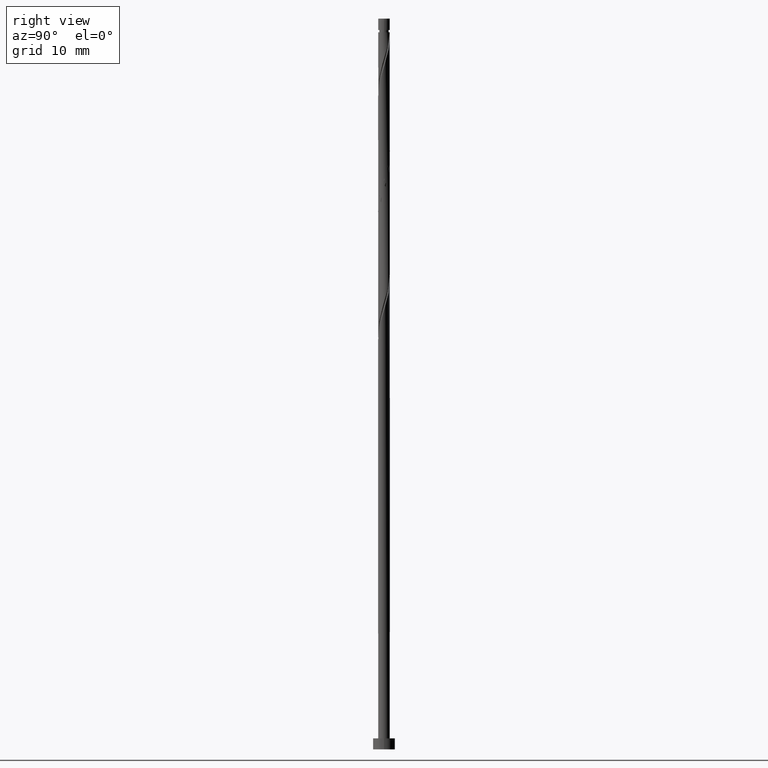
[diagram: clean part render]
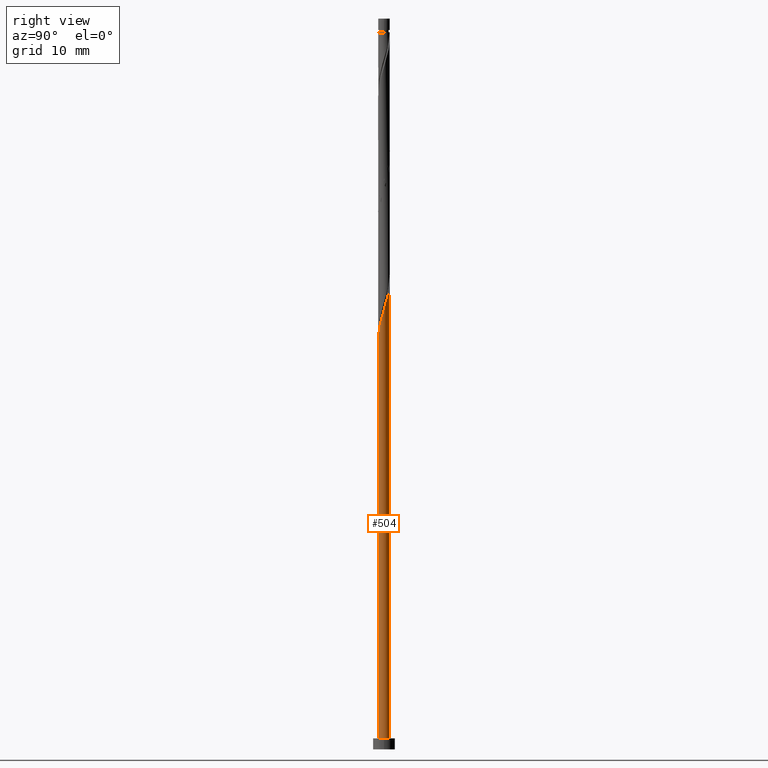
[diagram: same view with one face highlighted and labeled with its STEP entity id]
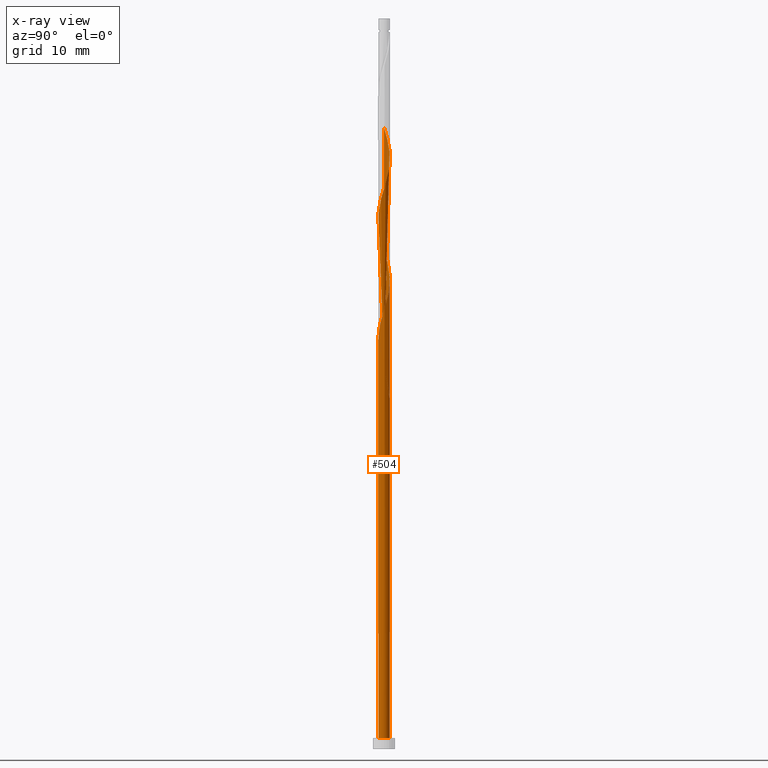
[diagram: x-ray of the same camera — body ghosted, the highlighted face saturated]
A machine part, right view. The second image highlights one B-rep face of the part: STEP entity #504.
The next image is the same camera in x-ray: the body ghosted, the highlighted face saturated — about 0% of this face is hidden behind the body in this view.
In plain terms, the highlighted cylindrical surface (bore or boss wall) has radius 0.8 mm, axis along (-0, -0, -1).
Its self-contained STEP definition (entity closure, byte-faithful):
#1 = CARTESIAN_POINT ( 'NONE',  ( 0.7137528483847243033, -0.3878856043515707674, 75.44453766478820000 ) ) ;
#6 = CARTESIAN_POINT ( 'NONE',  ( -0.7137528483847245253, 0.3878856043515706009, 83.77787099812151439 ) ) ;
#12 = CARTESIAN_POINT ( 'NONE',  ( -0.8000000000000013767, -7.525504397997678647E-16, 52.82724440496210860 ) ) ;
#13 = EDGE_CURVE ( 'NONE', #1334, #481, #1330, .T. ) ;
#43 = CARTESIAN_POINT ( 'NONE',  ( 0.5380435946977609740, -0.6086110916219013012, 57.85194507219559057 ) ) ;
#48 = DIRECTION ( 'NONE',  ( 1.000000000000000000, 0.000000000000000000, 0.000000000000000000 ) ) ;
#55 = DIRECTION ( 'NONE',  ( 0.000000000000000000, 0.000000000000000000, 1.000000000000000000 ) ) ;
#67 = CARTESIAN_POINT ( 'NONE',  ( -0.6258982215412428607, 0.4982483479867358400, 66.64824136849186687 ) ) ;
#74 = CARTESIAN_POINT ( 'NONE',  ( -0.02095763706162228138, 0.8120709009004596357, 64.33342655367705731 ) ) ;
#82 = DIRECTION ( 'NONE',  ( -0.000000000000000000, -0.000000000000000000, -1.000000000000000000 ) ) ;
#88 = CARTESIAN_POINT ( 'NONE',  ( -0.5380435946977610850, 0.6086110916219010791, 82.85194507219556215 ) ) ;
#89 =( BOUNDED_CURVE ( )  B_SPLINE_CURVE ( 2, ( #307, #1139, #325, #611, #618, #213, #942, #503, #1256 ),
 .UNSPECIFIED., .F., .T. ) 
 B_SPLINE_CURVE_WITH_KNOTS ( ( 3, 2, 2, 2, 3 ),
 ( 0.000000000000000000, 0.01388888888888883955, 0.02777777777777779011, 0.04166666666666662966, 0.05452480538552903488 ),
 .UNSPECIFIED. ) 
 CURVE ( )  GEOMETRIC_REPRESENTATION_ITEM ( )  RATIONAL_B_SPLINE_CURVE ( ( 0.9090909090909159440, 0.8952797754656505180, 0.9090909090909159440, 0.8952797754656505180, 0.9090909090909159440, 0.8952797754656505180, 0.9090909090909159440, 0.8963047551055907114, 0.9071930855141281391 ) ) 
 REPRESENTATION_ITEM ( '' )  );
#94 = CARTESIAN_POINT ( 'NONE',  ( -0.1185466159795211943, -0.7911679340315848075, 72.20379692404743821 ) ) ;
#108 = EDGE_CURVE ( 'NONE', #486, #1288, #864, .T. ) ;
#110 = CARTESIAN_POINT ( 'NONE',  ( -0.2974383428124959261, 0.7559290990995433113, 81.92601914626966675 ) ) ;
#115 = CARTESIAN_POINT ( 'NONE',  ( 0.1591979899370590257, -0.7840000000000012514, 73.12972284997334782 ) ) ;
#139 = CARTESIAN_POINT ( 'NONE',  ( -0.8000000000000015987, 8.477863515362155813E-16, 51.76553462831792274 ) ) ;
#148 = CARTESIAN_POINT ( 'NONE',  ( 0.5059346318738409121, 0.6355537104849376950, 62.48157470182522388 ) ) ;
#154 = CARTESIAN_POINT ( 'NONE',  ( 0.6927952113231024001, 0.4241852965488885907, 61.55564877589928585 ) ) ;
#158 = EDGE_CURVE ( 'NONE', #688, #631, #946, .T. ) ;
#189 = CARTESIAN_POINT ( 'NONE',  ( -0.4177409687551283946, 0.6822700953607219176, 65.72231544256597147 ) ) ;
#197 =( BOUNDED_CURVE ( )  B_SPLINE_CURVE ( 2, ( #139, #709, #359, #564, #716, #574, #1206, #783, #1018, #931, #1127, #1198, #1236, #604, #253, #43, #292, #1085, #789, #1091, #1133, #684, #986, #154, #676, #148, #1024, #466, #891, #74, #497, #1311, #189, #597, #67, #774, #612, #490, #1032, #918, #1336, #1243, #215, #937, #299, #1044, #94, #1356, #115, #638, #410, #308, #518, #1, #422, #1049, #844, #1346, #539, #1164, #943, #1057, #320, #1038, #735, #511, #722, #110, #533, #88, #957, #6, #327, #427, #222 ),
 .UNSPECIFIED., .F., .T. ) 
 B_SPLINE_CURVE_WITH_KNOTS ( ( 3, 2, 2, 2, 2, 2, 2, 2, 2, 2, 2, 2, 2, 2, 2, 2, 2, 2, 2, 2, 2, 2, 2, 2, 2, 2, 2, 2, 2, 2, 2, 2, 2, 2, 2, 2, 2, 3 ),
 ( 0.05452480538552903488, 0.05555555555555558023, 0.06944444444444441977, 0.08333333333333337034, 0.09722222222222220989, 0.1111111111111111605, 0.1250000000000000000, 0.1388888888888888395, 0.1527777777777777901, 0.1666666666666666297, 0.1805555555555555802, 0.1944444444444444198, 0.2083333333333333703, 0.2222222222222222099, 0.2361111111111111605, 0.2500000000000000000, 0.2638888888888888395, 0.2777777777777777901, 0.2916666666666666297, 0.3055555555555555802, 0.3194444444444444198, 0.3333333333333333703, 0.3472222222222222099, 0.3611111111111111605, 0.3750000000000000000, 0.3888888888888888395, 0.4027777777777777901, 0.4166666666666666297, 0.4305555555555555802, 0.4444444444444444198, 0.4583333333333333703, 0.4722222222222222099, 0.4861111111111111605, 0.5000000000000000000, 0.5138888888888888395, 0.5277777777777777901, 0.5416666666666667407, 0.5545248053855288406 ),
 .UNSPECIFIED. ) 
 CURVE ( )  GEOMETRIC_REPRESENTATION_ITEM ( )  RATIONAL_B_SPLINE_CURVE ( ( 0.9071930855141281391, 0.9080659294509758617, 0.9090909090909159440, 0.8952797754656505180, 0.9090909090909159440, 0.8952797754656505180, 0.9090909090909159440, 0.8952797754656505180, 0.9090909090909159440, 0.8952797754656505180, 0.9090909090909159440, 0.8952797754656505180, 0.9090909090909159440, 0.8952797754656505180, 0.9090909090909159440, 0.8952797754656505180, 0.9090909090909159440, 0.8952797754656505180, 0.9090909090909159440, 0.8952797754656505180, 0.9090909090909159440, 0.8952797754656505180, 0.9090909090909159440, 0.8952797754656505180, 0.9090909090909159440, 0.8952797754656505180, 0.9090909090909159440, 0.8952797754656505180, 0.9090909090909159440, 0.8952797754656505180, 0.9090909090909159440, 0.8952797754656505180, 0.9090909090909159440, 0.8952797754656505180, 0.9090909090909159440, 0.8952797754656505180, 0.9090909090909159440, 0.8952797754656505180, 0.9090909090909159440, 0.8952797754656505180, 0.9090909090909159440, 0.8952797754656505180, 0.9090909090909159440, 0.8952797754656505180, 0.9090909090909159440, 0.8952797754656505180, 0.9090909090909159440, 0.8952797754656505180, 0.9090909090909159440, 0.8952797754656505180, 0.9090909090909159440, 0.8952797754656505180, 0.9090909090909159440, 0.8952797754656505180, 0.9090909090909159440, 0.8952797754656505180, 0.9090909090909159440, 0.8952797754656505180, 0.9090909090909159440, 0.8952797754656505180, 0.9090909090909159440, 0.8952797754656505180, 0.9090909090909159440, 0.8952797754656505180, 0.9090909090909159440, 0.8952797754656505180, 0.9090909090909159440, 0.8952797754656505180, 0.9090909090909159440, 0.8952797754656505180, 0.9090909090909159440, 0.8952797754656505180, 0.9090909090909159440, 0.8963047551055908224, 0.9071930855141278061 ) ) 
 REPRESENTATION_ITEM ( '' )  );
#213 = CARTESIAN_POINT ( 'NONE',  ( -0.7137528483847245253, 0.3878856043515706009, 50.44453766478817869 ) ) ;
#215 = CARTESIAN_POINT ( 'NONE',  ( -0.5993649215984715450, -0.5298695035169131984, 70.35194507219556215 ) ) ;
#218 = LINE ( 'NONE', #389, #512 ) ;
#220 = CARTESIAN_POINT ( 'NONE',  ( -0.3819927504472525603, 0.7029093388238237816, 49.98157470182521678 ) ) ;
#222 = CARTESIAN_POINT ( 'NONE',  ( -0.8000000000000014877, -1.792675985627239927E-16, 85.09886796165127976 ) ) ;
#234 = CARTESIAN_POINT ( 'NONE',  ( -0.8000000000000013767, -7.525504397997677661E-16, 52.82724440496210150 ) ) ;
#253 = CARTESIAN_POINT ( 'NONE',  ( 0.4177409687551283946, -0.6822700953607219176, 57.38898210923260024 ) ) ;
#286 = CYLINDRICAL_SURFACE ( 'NONE', #613, 0.8000000000000000444 ) ;
#292 = CARTESIAN_POINT ( 'NONE',  ( 0.6258982215412428607, -0.4982483479867358400, 58.31490803515854537 ) ) ;
#297 = ORIENTED_EDGE ( 'NONE', *, *, #520, .F. ) ;
#299 = CARTESIAN_POINT ( 'NONE',  ( -0.3819927504472527824, -0.7029093388238236706, 71.27787099812150018 ) ) ;
#307 = CARTESIAN_POINT ( 'NONE',  ( -0.1591979899370589147, 0.7840000000000012514, 48.12972284997335493 ) ) ;
#308 = CARTESIAN_POINT ( 'NONE',  ( 0.5380435946977609740, -0.6086110916219013012, 74.51861173886223355 ) ) ;
#315 = VECTOR ( 'NONE', #842, 1000.000000000000000 ) ;
#320 = CARTESIAN_POINT ( 'NONE',  ( 0.3819927504472529489, 0.7029093388238235596, 79.61120433145484299 ) ) ;
#324 = ORIENTED_EDGE ( 'NONE', *, *, #421, .F. ) ;
#325 = CARTESIAN_POINT ( 'NONE',  ( -0.4177409687551283946, 0.6822700953607219176, 49.05564877589928585 ) ) ;
#327 = CARTESIAN_POINT ( 'NONE',  ( -0.7585629115355304597, 0.2541304964830881641, 84.24083396108446209 ) ) ;
#346 = CARTESIAN_POINT ( 'NONE',  ( 0.02095763706162231607, 0.8120709009004595247, 48.59268581293631684 ) ) ;
#351 = FACE_OUTER_BOUND ( 'NONE', #1246, .T. ) ;
#359 = CARTESIAN_POINT ( 'NONE',  ( -0.7997337192023812324, -0.02063924346310158642, 51.83342655367705021 ) ) ;
#389 = CARTESIAN_POINT ( 'NONE',  ( -0.8000000000000000444, 0.000000000000000000, 100.0000000000000000 ) ) ;
#396 = CARTESIAN_POINT ( 'NONE',  ( -0.8000000000000000444, 0.000000000000000000, 1.500000000000000000 ) ) ;
#410 = CARTESIAN_POINT ( 'NONE',  ( 0.4177409687551283946, -0.6822700953607219176, 74.05564877589928585 ) ) ;
#419 = CARTESIAN_POINT ( 'NONE',  ( -0.8000000000000000444, 0.000000000000000000, 100.0000000000000000 ) ) ;
#421 = EDGE_CURVE ( 'NONE', #1131, #481, #218, .T. ) ;
#422 = CARTESIAN_POINT ( 'NONE',  ( 0.7585629115355304597, -0.2541304964830884416, 75.90750062775113349 ) ) ;
#425 = AXIS2_PLACEMENT_3D ( 'NONE', #530, #726, #720 ) ;
#427 = CARTESIAN_POINT ( 'NONE',  ( -0.8000000000000003775, 0.1304434974563682403, 84.66894844928566499 ) ) ;
#439 = CARTESIAN_POINT ( 'NONE',  ( -0.2580508690206643196, 0.7702649671627099792, 49.51861173886224776 ) ) ;
#452 = CARTESIAN_POINT ( 'NONE',  ( -0.8000000000000015987, 8.477863515362155813E-16, 51.76553462831792984 ) ) ;
#460 = CARTESIAN_POINT ( 'NONE',  ( -0.5993649215984715450, 0.5298695035169133094, 50.90750062775114060 ) ) ;
#461 = ORIENTED_EDGE ( 'NONE', *, *, #421, .T. ) ;
#466 = CARTESIAN_POINT ( 'NONE',  ( 0.2580508690206648192, 0.7702649671627098682, 63.40750062775114770 ) ) ;
#481 = VERTEX_POINT ( 'NONE', #396 ) ;
#486 = VERTEX_POINT ( 'NONE', #1232 ) ;
#489 = CARTESIAN_POINT ( 'NONE',  ( 0.000000000000000000, 0.000000000000000000, 1.500000000000000000 ) ) ;
#490 = CARTESIAN_POINT ( 'NONE',  ( -0.8033729746863367271, 0.1203753886146056301, 68.03713025738075260 ) ) ;
#497 = CARTESIAN_POINT ( 'NONE',  ( -0.1591979899370589147, 0.7840000000000012514, 64.79638951664001922 ) ) ;
#503 = CARTESIAN_POINT ( 'NONE',  ( -0.8000000000000010436, 0.1304434974563662419, 51.33561511595231508 ) ) ;
#504 = ADVANCED_FACE ( 'NONE', ( #351 ), #286, .T. ) ;
#511 = CARTESIAN_POINT ( 'NONE',  ( -0.02095763706162228138, 0.8120709009004596357, 81.00009322034374293 ) ) ;
#512 = VECTOR ( 'NONE', #82, 1000.000000000000000 ) ;
#518 = CARTESIAN_POINT ( 'NONE',  ( 0.6258982215412428607, -0.4982483479867358400, 74.98157470182522388 ) ) ;
#520 = EDGE_CURVE ( 'NONE', #1131, #688, #197, .T. ) ;
#524 = DIRECTION ( 'NONE',  ( -1.000000000000000000, 0.000000000000000000, 0.000000000000000000 ) ) ;
#530 = CARTESIAN_POINT ( 'NONE',  ( 0.000000000000000000, 0.000000000000000000, 1.500000000000000000 ) ) ;
#533 = CARTESIAN_POINT ( 'NONE',  ( -0.4177409687551283946, 0.6822700953607219176, 82.38898210923262866 ) ) ;
#539 = CARTESIAN_POINT ( 'NONE',  ( 0.7444448375207640689, 0.2929195860448487454, 77.75935247960299534 ) ) ;
#543 = CIRCLE ( 'NONE', #765, 0.8000000000000000444 ) ;
#560 = CARTESIAN_POINT ( 'NONE',  ( -0.7997337192023811214, 0.02063924346310168703, 52.75935247960298824 ) ) ;
#564 = CARTESIAN_POINT ( 'NONE',  ( -0.7960944637184254047, -0.1616538755408088168, 52.29638951664001922 ) ) ;
#568 = ORIENTED_EDGE ( 'NONE', *, *, #108, .T. ) ;
#574 = CARTESIAN_POINT ( 'NONE',  ( -0.6927952113231021780, -0.4241852965488889793, 53.22231544256597147 ) ) ;
#597 = CARTESIAN_POINT ( 'NONE',  ( -0.5380435946977610850, 0.6086110916219010791, 66.18527840552890495 ) ) ;
#604 = CARTESIAN_POINT ( 'NONE',  ( 0.2974383428124957596, -0.7559290990995435333, 56.92601914626965964 ) ) ;
#611 = CARTESIAN_POINT ( 'NONE',  ( -0.5380435946977610850, 0.6086110916219010791, 49.51861173886226197 ) ) ;
#612 = CARTESIAN_POINT ( 'NONE',  ( -0.7585629115355304597, 0.2541304964830881641, 67.57416729441780490 ) ) ;
#613 = AXIS2_PLACEMENT_3D ( 'NONE', #925, #818, #670 ) ;
#618 = CARTESIAN_POINT ( 'NONE',  ( -0.6258982215412428607, 0.4982483479867358400, 49.98157470182522388 ) ) ;
#631 = VERTEX_POINT ( 'NONE', #12 ) ;
#638 = CARTESIAN_POINT ( 'NONE',  ( 0.2974383428124957596, -0.7559290990995435333, 73.59268581293633815 ) ) ;
#657 = CARTESIAN_POINT ( 'NONE',  ( -0.1185466159795210139, 0.7911679340315849185, 49.05564877589928585 ) ) ;
#670 = DIRECTION ( 'NONE',  ( -1.000000000000000000, 0.000000000000000000, 0.000000000000000000 ) ) ;
#672 = CARTESIAN_POINT ( 'NONE',  ( -0.5059346318738409121, 0.6355537104849376950, 50.44453766478816448 ) ) ;
#676 = CARTESIAN_POINT ( 'NONE',  ( 0.5993649215984715450, 0.5298695035169133094, 62.01861173886224776 ) ) ;
#684 = CARTESIAN_POINT ( 'NONE',  ( 0.7960944637184254047, 0.1616538755408087058, 60.62972284997336914 ) ) ;
#688 = VERTEX_POINT ( 'NONE', #889 ) ;
#694 = ORIENTED_EDGE ( 'NONE', *, *, #734, .T. ) ;
#709 = CARTESIAN_POINT ( 'NONE',  ( -0.8000000000000014877, -0.01032133946561597515, 51.79955200225028733 ) ) ;
#713 = ORIENTED_EDGE ( 'NONE', *, *, #971, .F. ) ;
#716 = CARTESIAN_POINT ( 'NONE',  ( -0.7444448375207640689, -0.2929195860448488564, 52.75935247960299534 ) ) ;
#720 = DIRECTION ( 'NONE',  ( 1.000000000000000000, 0.000000000000000000, 0.000000000000000000 ) ) ;
#722 = CARTESIAN_POINT ( 'NONE',  ( -0.1591979899370589147, 0.7840000000000012514, 81.46305618330670484 ) ) ;
#726 = DIRECTION ( 'NONE',  ( 0.000000000000000000, 0.000000000000000000, 1.000000000000000000 ) ) ;
#734 = EDGE_CURVE ( 'NONE', #481, #1334, #543, .T. ) ;
#735 = CARTESIAN_POINT ( 'NONE',  ( 0.1185466159795215968, 0.7911679340315846964, 80.53713025738078102 ) ) ;
#758 = CARTESIAN_POINT ( 'NONE',  ( -0.6927952113231021780, 0.4241852965488891458, 51.37046359071408830 ) ) ;
#765 = AXIS2_PLACEMENT_3D ( 'NONE', #489, #55, #48 ) ;
#768 = CARTESIAN_POINT ( 'NONE',  ( 0.1591979899370593032, 0.7840000000000013625, 48.12972284997334782 ) ) ;
#774 = CARTESIAN_POINT ( 'NONE',  ( -0.7137528483847245253, 0.3878856043515706009, 67.11120433145484299 ) ) ;
#783 = CARTESIAN_POINT ( 'NONE',  ( -0.5059346318738409121, -0.6355537104849376950, 54.14824136849186687 ) ) ;
#789 = CARTESIAN_POINT ( 'NONE',  ( 0.7585629115355304597, -0.2541304964830884416, 59.24083396108447630 ) ) ;
#810 = ORIENTED_EDGE ( 'NONE', *, *, #867, .F. ) ;
#818 = DIRECTION ( 'NONE',  ( -0.000000000000000000, -0.000000000000000000, -1.000000000000000000 ) ) ;
#842 = DIRECTION ( 'NONE',  ( -0.000000000000000000, -0.000000000000000000, -1.000000000000000000 ) ) ;
#844 = CARTESIAN_POINT ( 'NONE',  ( 0.7997337192023811214, 0.02063924346310166621, 76.83342655367707152 ) ) ;
#849 = CARTESIAN_POINT ( 'NONE',  ( 0.000000000000000000, 0.000000000000000000, 48.12972284997336203 ) ) ;
#864 = CIRCLE ( 'NONE', #1172, 0.8000000000000000444 ) ;
#867 = EDGE_CURVE ( 'NONE', #486, #1131, #89, .T. ) ;
#889 = CARTESIAN_POINT ( 'NONE',  ( -0.8000000000000015987, -1.792675985627239681E-16, 85.09886796165127976 ) ) ;
#891 = CARTESIAN_POINT ( 'NONE',  ( 0.1185466159795215968, 0.7911679340315846964, 63.87046359071410251 ) ) ;
#902 = CARTESIAN_POINT ( 'NONE',  ( 0.8000000000000000444, 0.000000000000000000, 1.500000000000000000 ) ) ;
#918 = CARTESIAN_POINT ( 'NONE',  ( -0.7960944637184254047, -0.1616538755408088168, 68.96305618330670484 ) ) ;
#925 = CARTESIAN_POINT ( 'NONE',  ( 0.000000000000000000, 0.000000000000000000, 100.0000000000000000 ) ) ;
#931 = CARTESIAN_POINT ( 'NONE',  ( -0.2580508690206642641, -0.7702649671627099792, 55.07416729441781200 ) ) ;
#937 = CARTESIAN_POINT ( 'NONE',  ( -0.5059346318738409121, -0.6355537104849376950, 70.81490803515855248 ) ) ;
#942 = CARTESIAN_POINT ( 'NONE',  ( -0.7585629115355304597, 0.2541304964830881641, 50.90750062775113349 ) ) ;
#943 = CARTESIAN_POINT ( 'NONE',  ( 0.5993649215984715450, 0.5298695035169133094, 78.68527840552891917 ) ) ;
#946 = LINE ( 'NONE', #419, #315 ) ;
#957 = CARTESIAN_POINT ( 'NONE',  ( -0.6258982215412428607, 0.4982483479867358400, 83.31490803515853827 ) ) ;
#971 = EDGE_CURVE ( 'NONE', #631, #1288, #1045, .T. ) ;
#986 = CARTESIAN_POINT ( 'NONE',  ( 0.7444448375207640689, 0.2929195860448487454, 61.09268581293632394 ) ) ;
#1018 = CARTESIAN_POINT ( 'NONE',  ( -0.3819927504472527824, -0.7029093388238236706, 54.61120433145483588 ) ) ;
#1021 = CARTESIAN_POINT ( 'NONE',  ( 0.1591979899370593032, 0.7840000000000013625, 48.12972284997335493 ) ) ;
#1024 = CARTESIAN_POINT ( 'NONE',  ( 0.3819927504472529489, 0.7029093388238235596, 62.94453766478816448 ) ) ;
#1032 = CARTESIAN_POINT ( 'NONE',  ( -0.7997337192023812324, -0.02063924346310158642, 68.50009322034374293 ) ) ;
#1038 = CARTESIAN_POINT ( 'NONE',  ( 0.2580508690206648192, 0.7702649671627098682, 80.07416729441781911 ) ) ;
#1044 = CARTESIAN_POINT ( 'NONE',  ( -0.2580508690206642641, -0.7702649671627099792, 71.74083396108446209 ) ) ;
#1045 =( BOUNDED_CURVE ( )  B_SPLINE_CURVE ( 2, ( #234, #1061, #560, #1162, #1287, #758, #460, #672, #220, #439, #657, #346, #768 ),
 .UNSPECIFIED., .F., .T. ) 
 B_SPLINE_CURVE_WITH_KNOTS ( ( 3, 2, 2, 2, 2, 2, 3 ),
 ( 0.9295248053855291737, 0.9305555555555555802, 0.9444444444444444198, 0.9583333333333333703, 0.9722222222222222099, 0.9861111111111111605, 1.000000000000000000 ),
 .UNSPECIFIED. ) 
 CURVE ( )  GEOMETRIC_REPRESENTATION_ITEM ( )  RATIONAL_B_SPLINE_CURVE ( ( 0.9071930855141290273, 0.9080659294509766388, 0.9090909090909166101, 0.8952797754656511842, 0.9090909090909166101, 0.8952797754656511842, 0.9090909090909166101, 0.8952797754656511842, 0.9090909090909166101, 0.8952797754656511842, 0.9090909090909166101, 0.8952797754656511842, 0.9090909090909166101 ) ) 
 REPRESENTATION_ITEM ( '' )  );
#1049 = CARTESIAN_POINT ( 'NONE',  ( 0.8033729746863369492, -0.1203753886146061020, 76.37046359071410961 ) ) ;
#1057 = CARTESIAN_POINT ( 'NONE',  ( 0.5059346318738409121, 0.6355537104849376950, 79.14824136849186687 ) ) ;
#1061 = CARTESIAN_POINT ( 'NONE',  ( -0.8000000000000012657, 0.01032133946561746007, 52.79322703102975112 ) ) ;
#1085 = CARTESIAN_POINT ( 'NONE',  ( 0.7137528483847243033, -0.3878856043515707674, 58.77787099812150728 ) ) ;
#1091 = CARTESIAN_POINT ( 'NONE',  ( 0.8033729746863369492, -0.1203753886146061020, 59.70379692404742400 ) ) ;
#1125 = ORIENTED_EDGE ( 'NONE', *, *, #158, .F. ) ;
#1127 = CARTESIAN_POINT ( 'NONE',  ( -0.1185466159795211943, -0.7911679340315848075, 55.53713025738077391 ) ) ;
#1131 = VERTEX_POINT ( 'NONE', #452 ) ;
#1133 = CARTESIAN_POINT ( 'NONE',  ( 0.7997337192023811214, 0.02063924346310166621, 60.16675988701040012 ) ) ;
#1137 = DIRECTION ( 'NONE',  ( 0.000000000000000000, -0.000000000000000000, -1.000000000000000000 ) ) ;
#1139 = CARTESIAN_POINT ( 'NONE',  ( -0.2974383428124959261, 0.7559290990995433113, 48.59268581293631684 ) ) ;
#1162 = CARTESIAN_POINT ( 'NONE',  ( -0.7960944637184254047, 0.1616538755408088723, 52.29638951664001922 ) ) ;
#1164 = CARTESIAN_POINT ( 'NONE',  ( 0.6927952113231024001, 0.4241852965488885907, 78.22231544256594304 ) ) ;
#1172 = AXIS2_PLACEMENT_3D ( 'NONE', #849, #1137, #524 ) ;
#1198 = CARTESIAN_POINT ( 'NONE',  ( 0.02095763706162204199, -0.8120709009004596357, 56.00009322034373582 ) ) ;
#1206 = CARTESIAN_POINT ( 'NONE',  ( -0.5993649215984715450, -0.5298695035169131984, 53.68527840552891917 ) ) ;
#1228 = ORIENTED_EDGE ( 'NONE', *, *, #13, .T. ) ;
#1232 = CARTESIAN_POINT ( 'NONE',  ( -0.1591979899370589147, 0.7840000000000012514, 48.12972284997335493 ) ) ;
#1236 = CARTESIAN_POINT ( 'NONE',  ( 0.1591979899370590257, -0.7840000000000012514, 56.46305618330669063 ) ) ;
#1243 = CARTESIAN_POINT ( 'NONE',  ( -0.6927952113231021780, -0.4241852965488889793, 69.88898210923260024 ) ) ;
#1246 = EDGE_LOOP ( 'NONE', ( #1125, #297, #461, #694, #1228, #324, #810, #568, #713 ) ) ;
#1256 = CARTESIAN_POINT ( 'NONE',  ( -0.8000000000000015987, 8.477863515362155813E-16, 51.76553462831792274 ) ) ;
#1287 = CARTESIAN_POINT ( 'NONE',  ( -0.7444448375207638469, 0.2929195860448489674, 51.83342655367706442 ) ) ;
#1288 = VERTEX_POINT ( 'NONE', #1021 ) ;
#1311 = CARTESIAN_POINT ( 'NONE',  ( -0.2974383428124959261, 0.7559290990995433113, 65.25935247960300956 ) ) ;
#1330 = CIRCLE ( 'NONE', #425, 0.8000000000000000444 ) ;
#1334 = VERTEX_POINT ( 'NONE', #902 ) ;
#1336 = CARTESIAN_POINT ( 'NONE',  ( -0.7444448375207640689, -0.2929195860448488564, 69.42601914626966675 ) ) ;
#1346 = CARTESIAN_POINT ( 'NONE',  ( 0.7960944637184254047, 0.1616538755408087058, 77.29638951664003343 ) ) ;
#1356 = CARTESIAN_POINT ( 'NONE',  ( 0.02095763706162204199, -0.8120709009004596357, 72.66675988701040012 ) ) ;